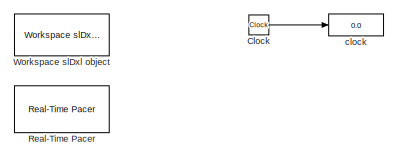
[diagram: root canvas - part 1/2, top left region]
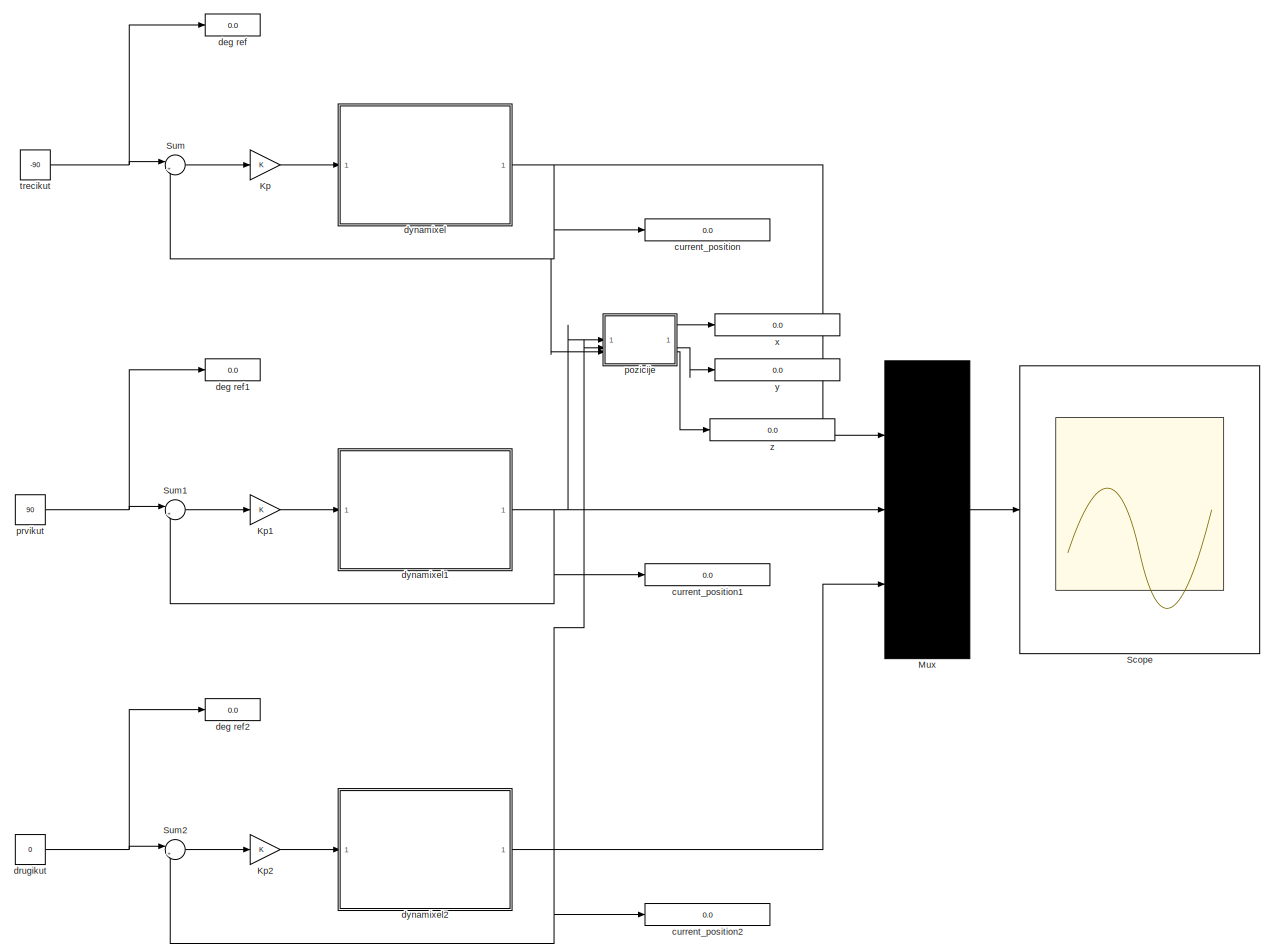
[diagram: root canvas - part 2/2, most of the canvas]
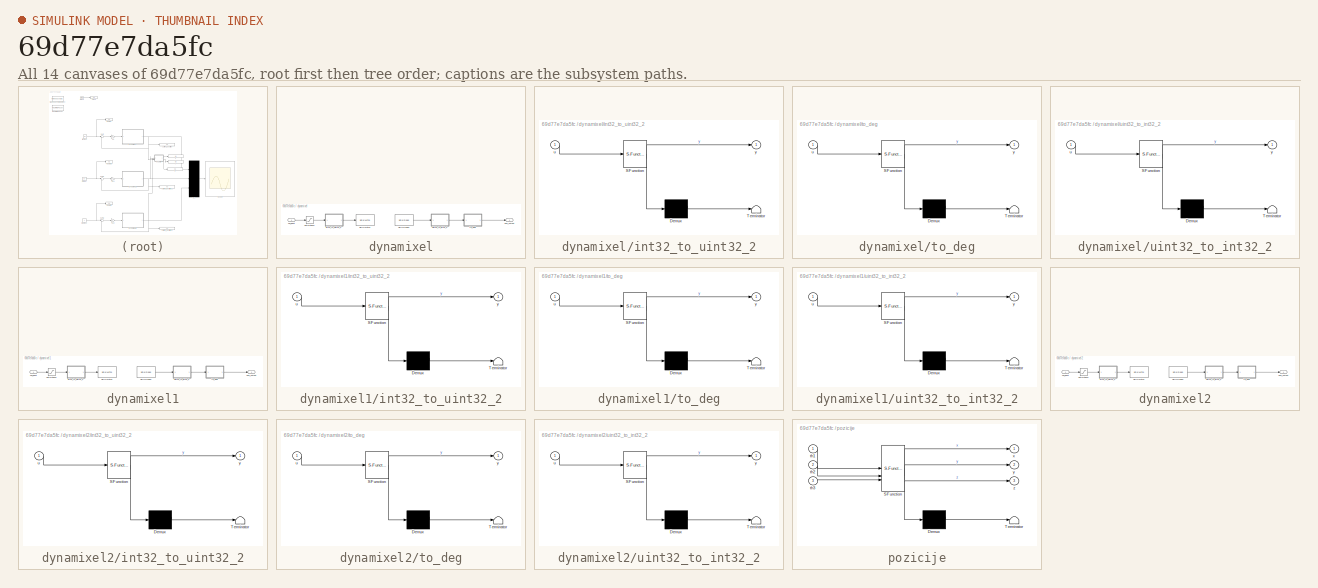
[diagram: thumbnail index - all 14 canvases of the model, root first then tree order]
MODEL slx_69d77e7da5fc
KIND model
CONFIG AbsTol = auto
CONFIG EnableMultiTasking = off
CONFIG FixedStep = Ts
CONFIG MaxStep = auto
CONFIG MinStep = auto
CONFIG RelTol = 1e-3
CONFIG SampleTimeConstraint = Unconstrained
CONFIG SolverName = FixedStepAuto
CONFIG StartFcn = blk1 = 'simulation_three_motors/dynamixel/to_deg';\nblk2 = 'simulation_three_motors/dynamixel1/to_deg';\nblk3 = 'simulation_three_motors/dynamixel2/to_deg';\nblk4 = 'simulation_three_motors/pozicije';\nblk5 = 'simulation_three_motors/pozicije';\nblk6 = 'simulation_three_motors/pozicije';\n\n\nevent = 'PostOutputs';\nglobal hApp;\n\nlistener1 = @(block, event) hApp.UpdateText({'Kut1Label'},block.OutputPort(1)...<+736ch>
CONFIG StartTime = 0.0
CONFIG StopTime = inf
BLOCK [Clock] Clock
BLOCK [Gain] Kp
BLOCK [Gain] Kp1
BLOCK [Gain] Kp2
BLOCK [Mux] Mux
  DisplayOption = bar
  Inputs = 3
BLOCK [Reference] Real-Time Pacer  REF=slDxl_lib_old/Real-Time Pacer
  Commented = on
  SourceBlock = slDxl_lib_old/Real-Time Pacer
  SourceType = RealTime_Pacer
BLOCK [Scope] Scope
  Floating = off
  NumInputPorts = 1
  ScopeSpecificationString = Simulink.scopes.TimeScopeBlockCfg('CurrentConfiguration', extmgr.ConfigurationSet(extmgr.Configuration('Core','General UI',true,'FigureColor',[0.156862745098039 0.156862745098039 0.156862745098039]),extmgr.Configuration('Core','Source UI',true),extmgr.Configuration('Sources','WiredSimulink',true,'DataLoggingSaveFormat','StructureWithTime','DataLoggingDecimation','1','DataLoggingDecimateData',true)...<+2763ch>
BLOCK [Sum] Sum
  Inputs = |+-
BLOCK [Sum] Sum1
  Inputs = |+-
BLOCK [Sum] Sum2
  Inputs = |+-
BLOCK [Reference] Workspace slDxl object  REF=slDxl_lib_old/Workspace slDxl object
  SourceBlock = slDxl_lib_old/Workspace slDxl object
  SourceType = slDxl Setup
BLOCK [Display] clock
  Decimation = 1
  Format = long
BLOCK [Display] current_position
  Decimation = 5
  Format = long
BLOCK [Display] current_position1
  Decimation = 5
  Format = long
BLOCK [Display] current_position2
  Decimation = 5
  Format = long
BLOCK [Display] deg ref
  Decimation = 1
  Format = long
BLOCK [Display] deg ref1
  Decimation = 1
  Format = long
BLOCK [Display] deg ref2
  Decimation = 1
  Format = long
BLOCK [Constant] drugikut
  Value = 0
BLOCK [SubSystem] dynamixel
BLOCK [Saturate] dynamixel/Saturation2
  LowerLimit = -256
  NameLocation = top
  UpperLimit = 256
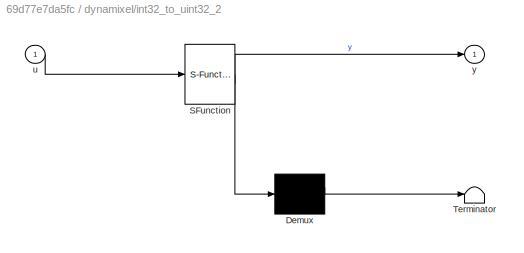
BLOCK [SubSystem] dynamixel/int32_to_uint32_2
  ErrorFcn = Stateflow.Translate.translate
  PermitHierarchicalResolution = ExplicitOnly
  SFBlockType = MATLAB Function
  TreatAsAtomicUnit = on
BLOCK [Demux] dynamixel/int32_to_uint32_2/ Demux 
  Outputs = 1
BLOCK [S-Function] dynamixel/int32_to_uint32_2/ SFunction 
  EnableBusSupport = on
  FunctionName = sf_sfun
  PortCounts = [1 2]
  SFcnIsStateOwnerBlock = off
  SFunctionDeploymentMode = off
  Tag = Stateflow S-Function 4
BLOCK [Terminator] dynamixel/int32_to_uint32_2/ Terminator 
BLOCK [Inport] dynamixel/int32_to_uint32_2/u
BLOCK [Outport] dynamixel/int32_to_uint32_2/y
  VectorParamsAs1DForOutWhenUnconnected = off
BLOCK [Outport] dynamixel/pos_output
  VectorParamsAs1DForOutWhenUnconnected = off
BLOCK [Reference] dynamixel/slDxl Read1  REF=slDxl_lib_old/slDxl Read
  SourceBlock = slDxl_lib_old/slDxl Read
BLOCK [Reference] dynamixel/slDxl Write1  REF=slDxl_lib_old/slDxl Write
  SourceBlock = slDxl_lib_old/slDxl Write
BLOCK [SubSystem] dynamixel/to_deg
  ErrorFcn = Stateflow.Translate.translate
  PermitHierarchicalResolution = ExplicitOnly
  SFBlockType = MATLAB Function
  TreatAsAtomicUnit = on
BLOCK [Demux] dynamixel/to_deg/ Demux 
  Outputs = 1
BLOCK [S-Function] dynamixel/to_deg/ SFunction 
  EnableBusSupport = on
  FunctionName = sf_sfun
  PortCounts = [1 2]
  SFcnIsStateOwnerBlock = off
  SFunctionDeploymentMode = off
  Tag = Stateflow S-Function 3
BLOCK [Terminator] dynamixel/to_deg/ Terminator 
BLOCK [Inport] dynamixel/to_deg/u
BLOCK [Outport] dynamixel/to_deg/y
  VectorParamsAs1DForOutWhenUnconnected = off
BLOCK [SubSystem] dynamixel/uint32_to_int32_2
  ErrorFcn = Stateflow.Translate.translate
  PermitHierarchicalResolution = ExplicitOnly
  SFBlockType = MATLAB Function
  TreatAsAtomicUnit = on
BLOCK [Demux] dynamixel/uint32_to_int32_2/ Demux 
  Outputs = 1
BLOCK [S-Function] dynamixel/uint32_to_int32_2/ SFunction 
  EnableBusSupport = on
  FunctionName = sf_sfun
  PortCounts = [1 2]
  SFcnIsStateOwnerBlock = off
  SFunctionDeploymentMode = off
  Tag = Stateflow S-Function 1
BLOCK [Terminator] dynamixel/uint32_to_int32_2/ Terminator 
BLOCK [Inport] dynamixel/uint32_to_int32_2/u
BLOCK [Outport] dynamixel/uint32_to_int32_2/y
  VectorParamsAs1DForOutWhenUnconnected = off
BLOCK [Inport] dynamixel/vel_input
BLOCK [SubSystem] dynamixel1
BLOCK [Saturate] dynamixel1/Saturation2
  LowerLimit = -256
  NameLocation = top
  UpperLimit = 256
BLOCK [SubSystem] dynamixel1/int32_to_uint32_2
  ErrorFcn = Stateflow.Translate.translate
  PermitHierarchicalResolution = ExplicitOnly
  SFBlockType = MATLAB Function
  TreatAsAtomicUnit = on
BLOCK [Demux] dynamixel1/int32_to_uint32_2/ Demux 
  Outputs = 1
BLOCK [S-Function] dynamixel1/int32_to_uint32_2/ SFunction 
  EnableBusSupport = on
  FunctionName = sf_sfun
  PortCounts = [1 2]
  SFcnIsStateOwnerBlock = off
  SFunctionDeploymentMode = off
  Tag = Stateflow S-Function 2
BLOCK [Terminator] dynamixel1/int32_to_uint32_2/ Terminator 
BLOCK [Inport] dynamixel1/int32_to_uint32_2/u
BLOCK [Outport] dynamixel1/int32_to_uint32_2/y
  VectorParamsAs1DForOutWhenUnconnected = off
BLOCK [Outport] dynamixel1/pos_output
  VectorParamsAs1DForOutWhenUnconnected = off
BLOCK [Reference] dynamixel1/slDxl Read1  REF=slDxl_lib_old/slDxl Read
  SourceBlock = slDxl_lib_old/slDxl Read
BLOCK [Reference] dynamixel1/slDxl Write1  REF=slDxl_lib_old/slDxl Write
  SourceBlock = slDxl_lib_old/slDxl Write
BLOCK [SubSystem] dynamixel1/to_deg
  ErrorFcn = Stateflow.Translate.translate
  PermitHierarchicalResolution = ExplicitOnly
  SFBlockType = MATLAB Function
  TreatAsAtomicUnit = on
BLOCK [Demux] dynamixel1/to_deg/ Demux 
  Outputs = 1
BLOCK [S-Function] dynamixel1/to_deg/ SFunction 
  EnableBusSupport = on
  FunctionName = sf_sfun
  PortCounts = [1 2]
  SFcnIsStateOwnerBlock = off
  SFunctionDeploymentMode = off
  Tag = Stateflow S-Function 5
BLOCK [Terminator] dynamixel1/to_deg/ Terminator 
BLOCK [Inport] dynamixel1/to_deg/u
BLOCK [Outport] dynamixel1/to_deg/y
  VectorParamsAs1DForOutWhenUnconnected = off
BLOCK [SubSystem] dynamixel1/uint32_to_int32_2
  ErrorFcn = Stateflow.Translate.translate
  PermitHierarchicalResolution = ExplicitOnly
  SFBlockType = MATLAB Function
  TreatAsAtomicUnit = on
BLOCK [Demux] dynamixel1/uint32_to_int32_2/ Demux 
  Outputs = 1
BLOCK [S-Function] dynamixel1/uint32_to_int32_2/ SFunction 
  EnableBusSupport = on
  FunctionName = sf_sfun
  PortCounts = [1 2]
  SFcnIsStateOwnerBlock = off
  SFunctionDeploymentMode = off
  Tag = Stateflow S-Function 6
BLOCK [Terminator] dynamixel1/uint32_to_int32_2/ Terminator 
BLOCK [Inport] dynamixel1/uint32_to_int32_2/u
BLOCK [Outport] dynamixel1/uint32_to_int32_2/y
  VectorParamsAs1DForOutWhenUnconnected = off
BLOCK [Inport] dynamixel1/vel_input
BLOCK [SubSystem] dynamixel2
BLOCK [Saturate] dynamixel2/Saturation2
  LowerLimit = -256
  NameLocation = top
  UpperLimit = 256
BLOCK [SubSystem] dynamixel2/int32_to_uint32_2
  ErrorFcn = Stateflow.Translate.translate
  PermitHierarchicalResolution = ExplicitOnly
  SFBlockType = MATLAB Function
  TreatAsAtomicUnit = on
BLOCK [Demux] dynamixel2/int32_to_uint32_2/ Demux 
  Outputs = 1
BLOCK [S-Function] dynamixel2/int32_to_uint32_2/ SFunction 
  EnableBusSupport = on
  FunctionName = sf_sfun
  PortCounts = [1 2]
  SFcnIsStateOwnerBlock = off
  SFunctionDeploymentMode = off
  Tag = Stateflow S-Function 7
BLOCK [Terminator] dynamixel2/int32_to_uint32_2/ Terminator 
BLOCK [Inport] dynamixel2/int32_to_uint32_2/u
BLOCK [Outport] dynamixel2/int32_to_uint32_2/y
  VectorParamsAs1DForOutWhenUnconnected = off
BLOCK [Outport] dynamixel2/pos_output
  VectorParamsAs1DForOutWhenUnconnected = off
BLOCK [Reference] dynamixel2/slDxl Read1  REF=slDxl_lib_old/slDxl Read
  SourceBlock = slDxl_lib_old/slDxl Read
BLOCK [Reference] dynamixel2/slDxl Write1  REF=slDxl_lib_old/slDxl Write
  SourceBlock = slDxl_lib_old/slDxl Write
BLOCK [SubSystem] dynamixel2/to_deg
  ErrorFcn = Stateflow.Translate.translate
  PermitHierarchicalResolution = ExplicitOnly
  SFBlockType = MATLAB Function
  TreatAsAtomicUnit = on
BLOCK [Demux] dynamixel2/to_deg/ Demux 
  Outputs = 1
BLOCK [S-Function] dynamixel2/to_deg/ SFunction 
  EnableBusSupport = on
  FunctionName = sf_sfun
  PortCounts = [1 2]
  SFcnIsStateOwnerBlock = off
  SFunctionDeploymentMode = off
  Tag = Stateflow S-Function 8
BLOCK [Terminator] dynamixel2/to_deg/ Terminator 
BLOCK [Inport] dynamixel2/to_deg/u
BLOCK [Outport] dynamixel2/to_deg/y
  VectorParamsAs1DForOutWhenUnconnected = off
BLOCK [SubSystem] dynamixel2/uint32_to_int32_2
  ErrorFcn = Stateflow.Translate.translate
  PermitHierarchicalResolution = ExplicitOnly
  SFBlockType = MATLAB Function
  TreatAsAtomicUnit = on
BLOCK [Demux] dynamixel2/uint32_to_int32_2/ Demux 
  Outputs = 1
BLOCK [S-Function] dynamixel2/uint32_to_int32_2/ SFunction 
  EnableBusSupport = on
  FunctionName = sf_sfun
  PortCounts = [1 2]
  SFcnIsStateOwnerBlock = off
  SFunctionDeploymentMode = off
  Tag = Stateflow S-Function 9
BLOCK [Terminator] dynamixel2/uint32_to_int32_2/ Terminator 
BLOCK [Inport] dynamixel2/uint32_to_int32_2/u
BLOCK [Outport] dynamixel2/uint32_to_int32_2/y
  VectorParamsAs1DForOutWhenUnconnected = off
BLOCK [Inport] dynamixel2/vel_input
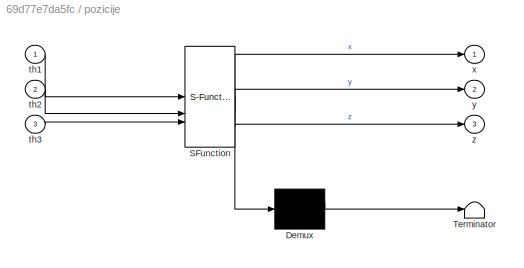
BLOCK [SubSystem] pozicije
  ErrorFcn = Stateflow.Translate.translate
  PermitHierarchicalResolution = ExplicitOnly
  SFBlockType = MATLAB Function
  TreatAsAtomicUnit = on
BLOCK [Demux] pozicije/ Demux 
  Outputs = 1
BLOCK [S-Function] pozicije/ SFunction 
  EnableBusSupport = on
  FunctionName = sf_sfun
  PortCounts = [3 4]
  SFcnIsStateOwnerBlock = off
  SFunctionDeploymentMode = off
  Tag = Stateflow S-Function 10
BLOCK [Terminator] pozicije/ Terminator 
BLOCK [Inport] pozicije/th1
BLOCK [Inport] pozicije/th2
  Port = 2
BLOCK [Inport] pozicije/th3
  Port = 3
BLOCK [Outport] pozicije/x
BLOCK [Outport] pozicije/y
  Port = 2
BLOCK [Outport] pozicije/z
  Port = 3
BLOCK [Constant] prvikut
  Value = 90
BLOCK [Constant] trecikut
  Value = -90
BLOCK [Display] x
  Decimation = 5
  Format = long
BLOCK [Display] y
  Decimation = 5
  Format = long
BLOCK [Display] z
  Decimation = 5
  Format = long
LINE Clock:1 -> clock:1
LINE Kp1:1 -> dynamixel1:1
LINE Kp2:1 -> dynamixel2:1
LINE Kp:1 -> dynamixel:1
LINE Mux:1 -> Scope:1
LINE Sum1:1 -> Kp1:1
LINE Sum2:1 -> Kp2:1
LINE Sum:1 -> Kp:1
NET drugikut:1 -> Sum2:1, deg ref2:1
LINE dynamixel/Saturation2:1 -> dynamixel/int32_to_uint32_2:1
LINE dynamixel/int32_to_uint32_2:1 -> dynamixel/slDxl Write1:1
LINE dynamixel/slDxl Read1:1 -> dynamixel/uint32_to_int32_2:1
LINE dynamixel/to_deg:1 -> dynamixel/pos_output:1
LINE dynamixel/uint32_to_int32_2:1 -> dynamixel/to_deg:1
LINE dynamixel/vel_input:1 -> dynamixel/Saturation2:1
LINE dynamixel1/Saturation2:1 -> dynamixel1/int32_to_uint32_2:1
LINE dynamixel1/int32_to_uint32_2:1 -> dynamixel1/slDxl Write1:1
LINE dynamixel1/slDxl Read1:1 -> dynamixel1/uint32_to_int32_2:1
LINE dynamixel1/to_deg:1 -> dynamixel1/pos_output:1
LINE dynamixel1/uint32_to_int32_2:1 -> dynamixel1/to_deg:1
LINE dynamixel1/vel_input:1 -> dynamixel1/Saturation2:1
NET dynamixel1:1 -> Mux:2, Sum1:2, current_position1:1, pozicije:1
LINE dynamixel2/Saturation2:1 -> dynamixel2/int32_to_uint32_2:1
LINE dynamixel2/int32_to_uint32_2:1 -> dynamixel2/slDxl Write1:1
LINE dynamixel2/slDxl Read1:1 -> dynamixel2/uint32_to_int32_2:1
LINE dynamixel2/to_deg:1 -> dynamixel2/pos_output:1
LINE dynamixel2/uint32_to_int32_2:1 -> dynamixel2/to_deg:1
LINE dynamixel2/vel_input:1 -> dynamixel2/Saturation2:1
NET dynamixel2:1 -> Mux:3, Sum2:2, current_position2:1, pozicije:2
NET dynamixel:1 -> Mux:1, Sum:2, current_position:1, pozicije:3
LINE pozicije:1 -> x:1
LINE pozicije:2 -> y:1
LINE pozicije:3 -> z:1
NET prvikut:1 -> Sum1:1, deg ref1:1
NET trecikut:1 -> Sum:1, deg ref:1
note: NET lines group one-source signal fan-out (src -> all destinations, sorted); 1:1 wires keep LINE
CHART dynamixel/uint32_to_int32_2 states=1 transitions=1
  STATE_LABEL 'eML_blk_kernel()'
  STATE_LABEL "SCRIPT:\nfunction y = fcn(u)\n    temp = typecast(uint32(u), 'int32');\n    y = double(temp(1));\nend"
CHART dynamixel1/int32_to_uint32_2 states=1 transitions=1
  STATE_LABEL 'eML_blk_kernel()'
  STATE_LABEL "SCRIPT:\nfunction y = fcn(u)\n    temp = typecast(int32(u), 'uint32');\n    y = temp(1);\nend"
CHART dynamixel/to_deg states=1 transitions=1
  STATE_LABEL 'eML_blk_kernel()'
  STATE_LABEL 'SCRIPT:\nfunction y = fcn(u)\n    y = (u / 4095.0) * 360.0;\nend'
CHART dynamixel/int32_to_uint32_2 states=1 transitions=1
  STATE_LABEL 'eML_blk_kernel()'
  STATE_LABEL "SCRIPT:\nfunction y = fcn(u)\n    temp = typecast(int32(u), 'uint32');\n    y = temp(1);\nend"
CHART dynamixel1/to_deg states=1 transitions=1
  STATE_LABEL 'eML_blk_kernel()'
  STATE_LABEL 'SCRIPT:\nfunction y = fcn(u)\n    y = (u / 4095.0) * 360.0;\nend'
CHART dynamixel1/uint32_to_int32_2 states=1 transitions=1
  STATE_LABEL 'eML_blk_kernel()'
  STATE_LABEL "SCRIPT:\nfunction y = fcn(u)\n    temp = typecast(uint32(u), 'int32');\n    y = double(temp(1));\nend"
CHART dynamixel2/int32_to_uint32_2 states=1 transitions=1
  STATE_LABEL 'eML_blk_kernel()'
  STATE_LABEL "SCRIPT:\nfunction y = fcn(u)\n    temp = typecast(int32(u), 'uint32');\n    y = temp(1);\nend"
CHART dynamixel2/to_deg states=1 transitions=1
  STATE_LABEL 'eML_blk_kernel()'
  STATE_LABEL 'SCRIPT:\nfunction y = fcn(u)\n    y = (u / 4095.0) * 360.0;\nend'
CHART dynamixel2/uint32_to_int32_2 states=1 transitions=1
  STATE_LABEL 'eML_blk_kernel()'
  STATE_LABEL "SCRIPT:\nfunction y = fcn(u)\n    temp = typecast(uint32(u), 'int32');\n    y = double(temp(1));\nend"
CHART pozicije states=1 transitions=1
  STATE_LABEL 'eML_blk_kernel()'
  STATE_LABEL 'SCRIPT:\nfunction [x, y, z] = direct_kinematics_realtime(th1, th2, th3)\n    [x, y, z] = direct_kinematics(th1, th2, -th3);\nend\n'
CHART  states=0 transitions=0
CHART  states=0 transitions=0
CHART  states=0 transitions=0
CHART  states=0 transitions=0
CHART  states=0 transitions=0
CHART  states=0 transitions=0
CHART  states=0 transitions=0
CHART  states=0 transitions=0
CHART  states=0 transitions=0
CHART  states=0 transitions=0
